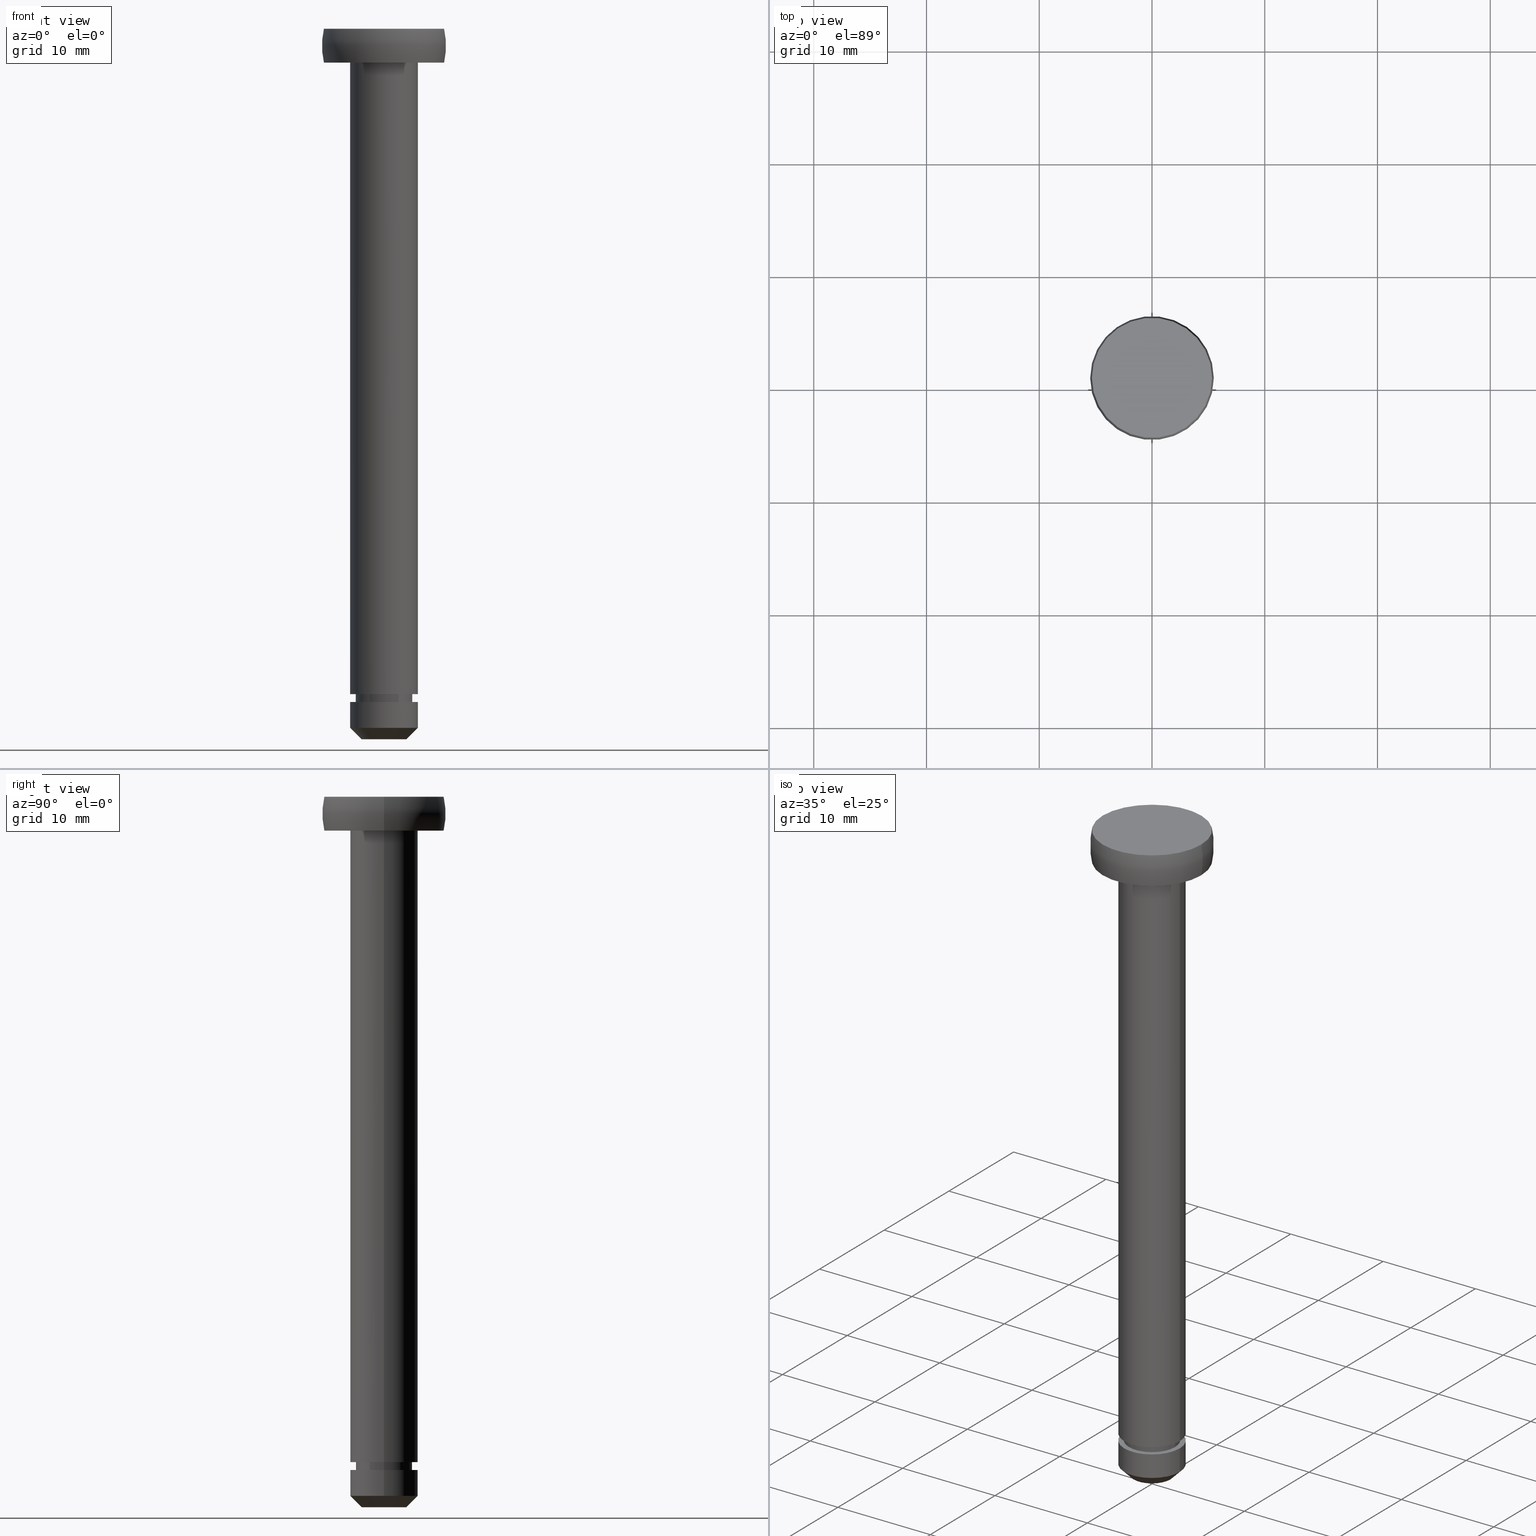
[diagram: canonical four-view strip — front | top / right | iso, engineering-drawing reading convention]
A machine part, canonical four-view strip (front | top / right | iso — engineering-drawing reading convention). The complete STEP part file that produces these views, byte-faithful:
ISO-10303-21;
HEADER;
FILE_DESCRIPTION (( 'STEP AP214' ),
    '1' );
FILE_NAME ('TH_121_6_60.STEP',
    '2016-08-24T01:35:07',
    ( '' ),
    ( '' ),
    'SwSTEP 2.0',
    'SolidWorks 2015',
    '' );
FILE_SCHEMA (( 'AUTOMOTIVE_DESIGN' ));
ENDSEC;

DATA;
#1 = APPLICATION_PROTOCOL_DEFINITION ( 'draft international standard', 'automotive_design', 1998, #329 ) ;
#2 = CARTESIAN_POINT ( 'NONE',  ( 1.142766791230102100, 0.0000000000000000000, 61.49999999097819600 ) ) ;
#3 = SHAPE_REPRESENTATION ( 'shaft', ( #101 ), #9 ) ;
#4 = PRODUCT_DEFINITION_SHAPE ( 'NONE', 'NONE',  #307 ) ;
#5 = EDGE_LOOP ( 'NONE', ( #110, #356, #138, #108 ) ) ;
#6 = VERTEX_POINT ( 'NONE', #304 ) ;
#7 = DIRECTION ( 'NONE',  ( -0.7071067811865862100, 8.659560562355407400E-017, 0.7071067811865087100 ) ) ;
#8 = FACE_OUTER_BOUND ( 'NONE', #444, .T. ) ;
#9 =( GEOMETRIC_REPRESENTATION_CONTEXT ( 3 ) GLOBAL_UNCERTAINTY_ASSIGNED_CONTEXT ( ( #298 ) ) GLOBAL_UNIT_ASSIGNED_CONTEXT ( ( #248, #393, #429 ) ) REPRESENTATION_CONTEXT ( 'NONE', 'WORKASPACE' ) );
#10 = ADVANCED_FACE ( 'NONE', ( #74 ), #19, .T. ) ;
#11 = PRODUCT_CONTEXT ( 'NONE', #45, 'mechanical' ) ;
#12 = VERTEX_POINT ( 'NONE', #446 ) ;
#13 = CARTESIAN_POINT ( 'NONE',  ( 5.328427118366801300, 6.525441214997862900E-016, 59.99999998195649900 ) ) ;
#14 = CIRCLE ( 'NONE', #423, 5.328427118366794200 ) ;
#15 =( NAMED_UNIT ( * ) SI_UNIT ( $, .STERADIAN. ) SOLID_ANGLE_UNIT ( ) );
#16 = VECTOR ( 'NONE', #7, 1000.000000000000100 ) ;
#17 = ORIENTED_EDGE ( 'NONE', *, *, #126, .T. ) ;
#18 = AXIS2_PLACEMENT_3D ( 'NONE', #187, #144, #368 ) ;
#19 = CYLINDRICAL_SURFACE ( 'NONE', #322, 2.500000000000000000 ) ;
#20 = DIRECTION ( 'NONE',  ( -1.000000000000000000, 0.0000000000000000000, 0.0000000000000000000 ) ) ;
#21 = AXIS2_PLACEMENT_3D ( 'NONE', #454, #199, #20 ) ;
#22 = CARTESIAN_POINT ( 'NONE',  ( 0.0000000000000000000, 0.0000000000000000000, 63.00000000000000000 ) ) ;
#23 = VECTOR ( 'NONE', #254, 1000.000000000000000 ) ;
#24 = DIRECTION ( 'NONE',  ( -1.000000000000000000, 0.0000000000000000000, -0.0000000000000000000 ) ) ;
#25 = VERTEX_POINT ( 'NONE', #152 ) ;
#26 = DIRECTION ( 'NONE',  ( 0.0000000000000000000, 0.0000000000000000000, -1.000000000000000000 ) ) ;
#27 = CIRCLE ( 'NONE', #136, 3.000000000000000000 ) ;
#28 = VERTEX_POINT ( 'NONE', #376 ) ;
#29 = FILL_AREA_STYLE ('',( #247 ) ) ;
#30 = FACE_OUTER_BOUND ( 'NONE', #333, .T. ) ;
#31 = SHAPE_REPRESENTATION ( 'TH_121_6_60', ( #230, #308 ), #327 ) ;
#32 = FACE_BOUND ( 'NONE', #188, .T. ) ;
#33 = SURFACE_SIDE_STYLE ('',( #60 ) ) ;
#34 = ORIENTED_EDGE ( 'NONE', *, *, #143, .F. ) ;
#35 = AXIS2_PLACEMENT_3D ( 'NONE', #169, #430, #213 ) ;
#36 = APPLICATION_PROTOCOL_DEFINITION ( 'draft international standard', 'automotive_design', 1998, #447 ) ;
#37 = PLANE ( 'NONE',  #86 ) ;
#38 = CYLINDRICAL_SURFACE ( 'NONE', #157, 3.000000000000000000 ) ;
#39 = EDGE_LOOP ( 'NONE', ( #414, #239, #123, #240 ) ) ;
#40 = CARTESIAN_POINT ( 'NONE',  ( -5.328427118366794200, 0.0000000000000000000, 63.00000000000000000 ) ) ;
#41 = CARTESIAN_POINT ( 'NONE',  ( 3.000000000000000000, 0.0000000000000000000, 3.299999981956490000 ) ) ;
#42 = CARTESIAN_POINT ( 'NONE',  ( 0.0000000000000000000, 0.0000000000000000000, 63.00000000000000000 ) ) ;
#43 = EDGE_LOOP ( 'NONE', ( #389, #349, #419, #382 ) ) ;
#44 = DIRECTION ( 'NONE',  ( 1.000000000000000000, 0.0000000000000000000, 0.0000000000000000000 ) ) ;
#45 = APPLICATION_CONTEXT ( 'automotive_design' ) ;
#46 = CARTESIAN_POINT ( 'NONE',  ( 0.0000000000000000000, 0.0000000000000000000, 63.00000000000000000 ) ) ;
#47 = APPLICATION_PROTOCOL_DEFINITION ( 'draft international standard', 'automotive_design', 1998, #82 ) ;
#48 = DIRECTION ( 'NONE',  ( 0.0000000000000000000, 0.0000000000000000000, -1.000000000000000000 ) ) ;
#49 = DIRECTION ( 'NONE',  ( -1.000000000000000000, 0.0000000000000000000, 0.0000000000000000000 ) ) ;
#50 = ORIENTED_EDGE ( 'NONE', *, *, #362, .T. ) ;
#51 = VERTEX_POINT ( 'NONE', #265 ) ;
#52 = DIRECTION ( 'NONE',  ( 0.0000000000000000000, 0.0000000000000000000, -1.000000000000000000 ) ) ;
#53 = CARTESIAN_POINT ( 'NONE',  ( -2.000000000000000000, 3.061616997868383100E-016, -1.804338622957146800E-008 ) ) ;
#54 = AXIS2_PLACEMENT_3D ( 'NONE', #391, #55, #353 ) ;
#55 = DIRECTION ( 'NONE',  ( 0.0000000000000000000, 0.0000000000000000000, -1.000000000000000000 ) ) ;
#56 = ADVANCED_FACE ( 'NONE', ( #30 ), #390, .T. ) ;
#57 = CARTESIAN_POINT ( 'NONE',  ( -2.500000000000000000, 0.0000000000000000000, 3.999999981956506200 ) ) ;
#58 = SURFACE_STYLE_USAGE ( .BOTH. , #284 ) ;
#59 = AXIS2_PLACEMENT_3D ( 'NONE', #107, #331, #70 ) ;
#60 = SURFACE_STYLE_FILL_AREA ( #219 ) ;
#61 = FACE_OUTER_BOUND ( 'NONE', #200, .T. ) ;
#62 = ITEM_DEFINED_TRANSFORMATION ( 'NONE', 'NONE', #308,  #101 ) ;
#63 = ORIENTED_EDGE ( 'NONE', *, *, #171, .T. ) ;
#64 = CARTESIAN_POINT ( 'NONE',  ( -1.142766791230102100, -1.399485693051835900E-016, 61.49999999097819600 ) ) ;
#65 = LINE ( 'NONE', #66, #375 ) ;
#66 = CARTESIAN_POINT ( 'NONE',  ( 3.000000000000000000, 3.673940397442059900E-016, 63.00000000000000000 ) ) ;
#67 =( NAMED_UNIT ( * ) PLANE_ANGLE_UNIT ( ) SI_UNIT ( $, .RADIAN. ) );
#68 = PRESENTATION_LAYER_ASSIGNMENT (  '', '', ( #215 ) ) ;
#69 = DIRECTION ( 'NONE',  ( 0.0000000000000000000, 0.0000000000000000000, -1.000000000000000000 ) ) ;
#70 = DIRECTION ( 'NONE',  ( -1.000000000000000000, 0.0000000000000000000, 0.0000000000000000000 ) ) ;
#71 = EDGE_CURVE ( 'NONE', #25, #75, #166, .T. ) ;
#72 = UNCERTAINTY_MEASURE_WITH_UNIT (LENGTH_MEASURE( 1.000000000000000100E-005 ), #149, 'distance_accuracy_value', 'NONE');
#73 = DIRECTION ( 'NONE',  ( 0.0000000000000000000, 0.0000000000000000000, -1.000000000000000000 ) ) ;
#74 = FACE_OUTER_BOUND ( 'NONE', #98, .T. ) ;
#75 = VERTEX_POINT ( 'NONE', #273 ) ;
#76 = ORIENTED_EDGE ( 'NONE', *, *, #134, .T. ) ;
#77 = DIRECTION ( 'NONE',  ( -0.0000000000000000000, -0.0000000000000000000, 1.000000000000000000 ) ) ;
#78 =( NAMED_UNIT ( * ) SI_UNIT ( $, .STERADIAN. ) SOLID_ANGLE_UNIT ( ) );
#79 = AXIS2_PLACEMENT_3D ( 'NONE', #135, #52, #464 ) ;
#80 = VECTOR ( 'NONE', #91, 1000.000000000000000 ) ;
#81 = CIRCLE ( 'NONE', #18, 3.000000000000000000 ) ;
#82 = APPLICATION_CONTEXT ( 'automotive_design' ) ;
#83 = PLANE ( 'NONE',  #340 ) ;
#84 = PRODUCT_DEFINITION_CONTEXT ( 'detailed design', #82, 'design' ) ;
#85 = PLANE ( 'NONE',  #463 ) ;
#86 = AXIS2_PLACEMENT_3D ( 'NONE', #41, #183, #259 ) ;
#87 = ORIENTED_EDGE ( 'NONE', *, *, #143, .T. ) ;
#88 = ORIENTED_EDGE ( 'NONE', *, *, #344, .F. ) ;
#89 = LINE ( 'NONE', #228, #208 ) ;
#90 = CIRCLE ( 'NONE', #341, 5.328427118366800400 ) ;
#91 = DIRECTION ( 'NONE',  ( 0.0000000000000000000, 0.0000000000000000000, -1.000000000000000000 ) ) ;
#92 = ADVANCED_FACE ( 'NONE', ( #363 ), #206, .T. ) ;
#93 = CARTESIAN_POINT ( 'NONE',  ( 0.0000000000000000000, 0.0000000000000000000, 59.99999998195649900 ) ) ;
#94 = MECHANICAL_DESIGN_GEOMETRIC_PRESENTATION_REPRESENTATION (  '', ( #215 ), #121 ) ;
#95 = DIRECTION ( 'NONE',  ( -1.000000000000000000, 0.0000000000000000000, 0.0000000000000000000 ) ) ;
#96 = EDGE_CURVE ( 'NONE', #358, #253, #289, .T. ) ;
#97 = VERTEX_POINT ( 'NONE', #193 ) ;
#98 = EDGE_LOOP ( 'NONE', ( #221, #466, #106, #102 ) ) ;
#99 = CIRCLE ( 'NONE', #246, 3.000000000000000000 ) ;
#100 = DIRECTION ( 'NONE',  ( -1.224646799147353200E-016, 1.000000000000000000, 0.0000000000000000000 ) ) ;
#101 = AXIS2_PLACEMENT_3D ( 'NONE', #167, #209, #462 ) ;
#102 = ORIENTED_EDGE ( 'NONE', *, *, #276, .F. ) ;
#103 = SURFACE_STYLE_USAGE ( .BOTH. , #33 ) ;
#104 = DIRECTION ( 'NONE',  ( 0.0000000000000000000, 0.0000000000000000000, -1.000000000000000000 ) ) ;
#105 = FACE_BOUND ( 'NONE', #203, .T. ) ;
#106 = ORIENTED_EDGE ( 'NONE', *, *, #96, .F. ) ;
#107 = CARTESIAN_POINT ( 'NONE',  ( 0.0000000000000000000, 0.0000000000000000000, -1.804338622957146800E-008 ) ) ;
#108 = ORIENTED_EDGE ( 'NONE', *, *, #197, .F. ) ;
#109 = AXIS2_PLACEMENT_3D ( 'NONE', #2, #182, #407 ) ;
#110 = ORIENTED_EDGE ( 'NONE', *, *, #154, .F. ) ;
#111 = CARTESIAN_POINT ( 'NONE',  ( 2.000000000000000000, 0.0000000000000000000, -1.804338622957146800E-008 ) ) ;
#112 = DIRECTION ( 'NONE',  ( -1.000000000000000000, 0.0000000000000000000, 0.0000000000000000000 ) ) ;
#113 = FACE_OUTER_BOUND ( 'NONE', #211, .T. ) ;
#114 = CARTESIAN_POINT ( 'NONE',  ( 0.0000000000000000000, 0.0000000000000000000, 0.0000000000000000000 ) ) ;
#115 = ORIENTED_EDGE ( 'NONE', *, *, #362, .F. ) ;
#116 = DIRECTION ( 'NONE',  ( 1.000000000000000000, 0.0000000000000000000, 0.0000000000000000000 ) ) ;
#117 = ADVANCED_FACE ( 'NONE', ( #270 ), #409, .T. ) ;
#118 = EDGE_CURVE ( 'NONE', #12, #185, #14, .T. ) ;
#119 = DIRECTION ( 'NONE',  ( -1.000000000000000000, 0.0000000000000000000, 0.0000000000000000000 ) ) ;
#120 =( NAMED_UNIT ( * ) PLANE_ANGLE_UNIT ( ) SI_UNIT ( $, .RADIAN. ) );
#121 =( GEOMETRIC_REPRESENTATION_CONTEXT ( 3 ) GLOBAL_UNCERTAINTY_ASSIGNED_CONTEXT ( ( #175 ) ) GLOBAL_UNIT_ASSIGNED_CONTEXT ( ( #328, #67, #290 ) ) REPRESENTATION_CONTEXT ( 'NONE', 'WORKASPACE' ) );
#122 = PRESENTATION_STYLE_ASSIGNMENT (( #58 ) ) ;
#123 = ORIENTED_EDGE ( 'NONE', *, *, #276, .T. ) ;
#124 = DIRECTION ( 'NONE',  ( 0.0000000000000000000, 0.0000000000000000000, -1.000000000000000000 ) ) ;
#125 = CIRCLE ( 'NONE', #109, 6.642766791230083200 ) ;
#126 = EDGE_CURVE ( 'NONE', #159, #408, #181, .T. ) ;
#127 = DIRECTION ( 'NONE',  ( 0.0000000000000000000, 0.0000000000000000000, -1.000000000000000000 ) ) ;
#128 = DIRECTION ( 'NONE',  ( -1.000000000000000000, 0.0000000000000000000, 0.0000000000000000000 ) ) ;
#129 = ORIENTED_EDGE ( 'NONE', *, *, #118, .T. ) ;
#130 = CARTESIAN_POINT ( 'NONE',  ( 3.000000000000000000, 3.673940397442059900E-016, 63.00000000000000000 ) ) ;
#131 = STYLED_ITEM ( 'NONE', ( #122 ), #316 ) ;
#132 = ADVANCED_FACE ( 'NONE', ( #380 ), #83, .T. ) ;
#133 = CARTESIAN_POINT ( 'NONE',  ( -5.328427118366800400, 0.0000000000000000000, 59.99999998195649900 ) ) ;
#134 = EDGE_CURVE ( 'NONE', #367, #160, #445, .T. ) ;
#135 = CARTESIAN_POINT ( 'NONE',  ( 0.0000000000000000000, 0.0000000000000000000, 61.49999999097819600 ) ) ;
#136 = AXIS2_PLACEMENT_3D ( 'NONE', #364, #104, #330 ) ;
#137 = ORIENTED_EDGE ( 'NONE', *, *, #338, .F. ) ;
#138 = ORIENTED_EDGE ( 'NONE', *, *, #226, .T. ) ;
#139 = PLANE ( 'NONE',  #222 ) ;
#140 = DIRECTION ( 'NONE',  ( 0.0000000000000000000, 0.0000000000000000000, -1.000000000000000000 ) ) ;
#141 = DIRECTION ( 'NONE',  ( -1.000000000000000000, 0.0000000000000000000, 0.0000000000000000000 ) ) ;
#142 = EDGE_CURVE ( 'NONE', #253, #358, #398, .T. ) ;
#143 = EDGE_CURVE ( 'NONE', #97, #28, #421, .T. ) ;
#144 = DIRECTION ( 'NONE',  ( 0.0000000000000000000, 0.0000000000000000000, -1.000000000000000000 ) ) ;
#145 = EDGE_LOOP ( 'NONE', ( #297, #465, #174, #88 ) ) ;
#146 = ORIENTED_EDGE ( 'NONE', *, *, #235, .T. ) ;
#147 = ORIENTED_EDGE ( 'NONE', *, *, #250, .T. ) ;
#148 = DIRECTION ( 'NONE',  ( 0.0000000000000000000, -0.0000000000000000000, 1.000000000000000000 ) ) ;
#149 =( LENGTH_UNIT ( ) NAMED_UNIT ( * ) SI_UNIT ( .MILLI., .METRE. ) );
#150 = ADVANCED_FACE ( 'NONE', ( #312 ), #85, .T. ) ;
#151 = PRESENTATION_LAYER_ASSIGNMENT (  '', '', ( #131 ) ) ;
#152 = CARTESIAN_POINT ( 'NONE',  ( -2.999999999999999600, 3.673940397442058900E-016, 0.9999999819565036400 ) ) ;
#153 = DIRECTION ( 'NONE',  ( -1.000000000000000000, 0.0000000000000000000, 0.0000000000000000000 ) ) ;
#154 = EDGE_CURVE ( 'NONE', #28, #172, #65, .T. ) ;
#155 = CARTESIAN_POINT ( 'NONE',  ( 0.0000000000000000000, 0.0000000000000000000, 3.299999981956493100 ) ) ;
#156 = CARTESIAN_POINT ( 'NONE',  ( 0.0000000000000000000, 0.0000000000000000000, -1.804338012334484900E-008 ) ) ;
#157 = AXIS2_PLACEMENT_3D ( 'NONE', #439, #225, #141 ) ;
#158 = SHAPE_DEFINITION_REPRESENTATION ( #212, #3 ) ;
#159 = VERTEX_POINT ( 'NONE', #13 ) ;
#160 = VERTEX_POINT ( 'NONE', #361 ) ;
#161 = ORIENTED_EDGE ( 'NONE', *, *, #301, .F. ) ;
#162 = DIRECTION ( 'NONE',  ( 0.0000000000000000000, 0.0000000000000000000, -1.000000000000000000 ) ) ;
#163 = CARTESIAN_POINT ( 'NONE',  ( 0.0000000000000000000, 0.0000000000000000000, 3.299999981956493100 ) ) ;
#164 = DIRECTION ( 'NONE',  ( 0.0000000000000000000, 0.0000000000000000000, -1.000000000000000000 ) ) ;
#165 = CONICAL_SURFACE ( 'NONE', #395, 2.000000000000000000, 0.7853981633975031200 ) ;
#166 = CIRCLE ( 'NONE', #275, 2.999999999999999600 ) ;
#167 = CARTESIAN_POINT ( 'NONE',  ( 0.0000000000000000000, 0.0000000000000000000, 0.0000000000000000000 ) ) ;
#168 = AXIS2_PLACEMENT_3D ( 'NONE', #436, #69, #179 ) ;
#169 = CARTESIAN_POINT ( 'NONE',  ( 0.0000000000000000000, 0.0000000000000000000, 63.00000000000000000 ) ) ;
#170 = EDGE_CURVE ( 'NONE', #369, #433, #224, .T. ) ;
#171 = EDGE_CURVE ( 'NONE', #160, #75, #450, .T. ) ;
#172 = VERTEX_POINT ( 'NONE', #332 ) ;
#173 = ORIENTED_EDGE ( 'NONE', *, *, #245, .F. ) ;
#174 = ORIENTED_EDGE ( 'NONE', *, *, #301, .T. ) ;
#175 = UNCERTAINTY_MEASURE_WITH_UNIT (LENGTH_MEASURE( 1.000000000000000100E-005 ), #328, 'distance_accuracy_value', 'NONE');
#176 = LINE ( 'NONE', #130, #80 ) ;
#177 = DIRECTION ( 'NONE',  ( 0.0000000000000000000, 0.0000000000000000000, -1.000000000000000000 ) ) ;
#178 = MECHANICAL_DESIGN_GEOMETRIC_PRESENTATION_REPRESENTATION (  '', ( #131 ), #205 ) ;
#179 = DIRECTION ( 'NONE',  ( -1.000000000000000000, 0.0000000000000000000, 0.0000000000000000000 ) ) ;
#180 = APPLICATION_PROTOCOL_DEFINITION ( 'draft international standard', 'automotive_design', 1998, #45 ) ;
#181 = CIRCLE ( 'NONE', #343, 5.328427118366800400 ) ;
#182 = DIRECTION ( 'NONE',  ( -0.0000000000000000000, -1.000000000000000000, -0.0000000000000000000 ) ) ;
#183 = DIRECTION ( 'NONE',  ( 0.0000000000000000000, -0.0000000000000000000, 1.000000000000000000 ) ) ;
#184 = EDGE_LOOP ( 'NONE', ( #87, #443, #137, #286 ) ) ;
#185 = VERTEX_POINT ( 'NONE', #40 ) ;
#186 = AXIS2_PLACEMENT_3D ( 'NONE', #64, #100, #325 ) ;
#187 = CARTESIAN_POINT ( 'NONE',  ( 0.0000000000000000000, 0.0000000000000000000, 3.999999981956506200 ) ) ;
#188 = EDGE_LOOP ( 'NONE', ( #34, #264 ) ) ;
#189 = CIRCLE ( 'NONE', #459, 3.000000000000000000 ) ;
#190 = DIRECTION ( 'NONE',  ( 0.0000000000000000000, 0.0000000000000000000, 1.000000000000000000 ) ) ;
#191 = DIRECTION ( 'NONE',  ( -1.000000000000000000, 0.0000000000000000000, 0.0000000000000000000 ) ) ;
#192 = DIRECTION ( 'NONE',  ( 0.0000000000000000000, 0.0000000000000000000, -1.000000000000000000 ) ) ;
#193 = CARTESIAN_POINT ( 'NONE',  ( -3.000000000000000000, 0.0000000000000000000, 59.99999998195649900 ) ) ;
#194 = AXIS2_PLACEMENT_3D ( 'NONE', #425, #457, #201 ) ;
#195 = ORIENTED_EDGE ( 'NONE', *, *, #197, .T. ) ;
#196 = ORIENTED_EDGE ( 'NONE', *, *, #118, .F. ) ;
#197 = EDGE_CURVE ( 'NONE', #172, #51, #81, .T. ) ;
#198 = EDGE_CURVE ( 'NONE', #367, #25, #210, .T. ) ;
#199 = DIRECTION ( 'NONE',  ( 0.0000000000000000000, 0.0000000000000000000, -1.000000000000000000 ) ) ;
#200 = EDGE_LOOP ( 'NONE', ( #214, #147, #115, #432 ) ) ;
#201 = DIRECTION ( 'NONE',  ( -1.000000000000000000, 0.0000000000000000000, 0.0000000000000000000 ) ) ;
#202 = CIRCLE ( 'NONE', #194, 3.000000000000000000 ) ;
#203 = EDGE_LOOP ( 'NONE', ( #320, #404 ) ) ;
#204 = DIRECTION ( 'NONE',  ( -0.0000000000000000000, -0.0000000000000000000, 1.000000000000000000 ) ) ;
#205 =( GEOMETRIC_REPRESENTATION_CONTEXT ( 3 ) GLOBAL_UNCERTAINTY_ASSIGNED_CONTEXT ( ( #345 ) ) GLOBAL_UNIT_ASSIGNED_CONTEXT ( ( #321, #374, #78 ) ) REPRESENTATION_CONTEXT ( 'NONE', 'WORKASPACE' ) );
#206 = CYLINDRICAL_SURFACE ( 'NONE', #400, 3.000000000000000000 ) ;
#207 = ADVANCED_FACE ( 'NONE', ( #105, #468 ), #37, .T. ) ;
#208 = VECTOR ( 'NONE', #73, 1000.000000000000000 ) ;
#209 = DIRECTION ( 'NONE',  ( 0.0000000000000000000, 0.0000000000000000000, 1.000000000000000000 ) ) ;
#210 = LINE ( 'NONE', #440, #16 ) ;
#211 = EDGE_LOOP ( 'NONE', ( #50, #17 ) ) ;
#212 = PRODUCT_DEFINITION_SHAPE ( 'NONE', 'NONE',  #255 ) ;
#213 = DIRECTION ( 'NONE',  ( -1.000000000000000000, 0.0000000000000000000, 0.0000000000000000000 ) ) ;
#214 = ORIENTED_EDGE ( 'NONE', *, *, #435, .T. ) ;
#215 = STYLED_ITEM ( 'NONE', ( #453 ), #262 ) ;
#216 = VECTOR ( 'NONE', #177, 1000.000000000000000 ) ;
#217 = ORIENTED_EDGE ( 'NONE', *, *, #170, .F. ) ;
#218 = CARTESIAN_POINT ( 'NONE',  ( 3.000000000000000000, 0.0000000000000000000, 59.99999998195649900 ) ) ;
#219 = FILL_AREA_STYLE ('',( #258 ) ) ;
#220 = SURFACE_STYLE_FILL_AREA ( #29 ) ;
#221 = ORIENTED_EDGE ( 'NONE', *, *, #170, .T. ) ;
#222 = AXIS2_PLACEMENT_3D ( 'NONE', #218, #140, #288 ) ;
#223 = COLOUR_RGB ( '',0.7921568627450980000, 0.8196078431372548800, 0.9333333333333333500 ) ;
#224 = CIRCLE ( 'NONE', #438, 2.500000000000000000 ) ;
#225 = DIRECTION ( 'NONE',  ( 0.0000000000000000000, 0.0000000000000000000, -1.000000000000000000 ) ) ;
#226 = EDGE_CURVE ( 'NONE', #97, #51, #89, .T. ) ;
#227 = EDGE_CURVE ( 'NONE', #433, #253, #293, .T. ) ;
#228 = CARTESIAN_POINT ( 'NONE',  ( -3.000000000000000000, 0.0000000000000000000, 63.00000000000000000 ) ) ;
#229 = ORIENTED_EDGE ( 'NONE', *, *, #435, .F. ) ;
#230 = AXIS2_PLACEMENT_3D ( 'NONE', #283, #415, #377 ) ;
#231 = DIRECTION ( 'NONE',  ( 0.0000000000000000000, 0.0000000000000000000, -1.000000000000000000 ) ) ;
#232 = DIRECTION ( 'NONE',  ( -1.000000000000000000, 0.0000000000000000000, 0.0000000000000000000 ) ) ;
#233 = CARTESIAN_POINT ( 'NONE',  ( 0.0000000000000000000, 0.0000000000000000000, 0.0000000000000000000 ) ) ;
#234 = DIRECTION ( 'NONE',  ( -1.000000000000000000, 0.0000000000000000000, 0.0000000000000000000 ) ) ;
#235 = EDGE_CURVE ( 'NONE', #160, #367, #313, .T. ) ;
#236 = DIRECTION ( 'NONE',  ( -1.000000000000000000, 0.0000000000000000000, 0.0000000000000000000 ) ) ;
#237 = DIRECTION ( 'NONE',  ( 0.0000000000000000000, 0.0000000000000000000, -1.000000000000000000 ) ) ;
#238 = CARTESIAN_POINT ( 'NONE',  ( 2.500000000000000000, 0.0000000000000000000, 3.999999981956505300 ) ) ;
#239 = ORIENTED_EDGE ( 'NONE', *, *, #401, .T. ) ;
#240 = ORIENTED_EDGE ( 'NONE', *, *, #142, .F. ) ;
#241 = DIRECTION ( 'NONE',  ( 0.0000000000000000000, 0.0000000000000000000, -1.000000000000000000 ) ) ;
#242 = CARTESIAN_POINT ( 'NONE',  ( 0.0000000000000000000, 0.0000000000000000000, -1.804338622957146800E-008 ) ) ;
#243 = ADVANCED_FACE ( 'NONE', ( #399 ), #38, .T. ) ;
#244 = DIRECTION ( 'NONE',  ( -1.000000000000000000, 0.0000000000000000000, 0.0000000000000000000 ) ) ;
#245 = EDGE_CURVE ( 'NONE', #6, #278, #27, .T. ) ;
#246 = AXIS2_PLACEMENT_3D ( 'NONE', #163, #386, #128 ) ;
#247 = FILL_AREA_STYLE_COLOUR ( '', #319 ) ;
#248 =( LENGTH_UNIT ( ) NAMED_UNIT ( * ) SI_UNIT ( .MILLI., .METRE. ) );
#249 = EDGE_CURVE ( 'NONE', #185, #408, #125, .T. ) ;
#250 = EDGE_CURVE ( 'NONE', #12, #159, #355, .T. ) ;
#251 = CONTEXT_DEPENDENT_SHAPE_REPRESENTATION ( #452, #294 ) ;
#252 = CLOSED_SHELL ( 'NONE', ( #92, #10, #428, #392, #268, #448, #132, #150, #56, #305, #207, #117, #352, #243, #282 ) ) ;
#253 = VERTEX_POINT ( 'NONE', #437 ) ;
#254 = DIRECTION ( 'NONE',  ( 0.0000000000000000000, 0.0000000000000000000, -1.000000000000000000 ) ) ;
#255 = PRODUCT_DEFINITION ( 'UNKNOWN', '', #378, #84 ) ;
#256 = SHAPE_REPRESENTATION_RELATIONSHIP ( 'NONE' , 'NONE' ,  #3, #316 ) ;
#257 = VECTOR ( 'NONE', #292, 1000.000000000000100 ) ;
#258 = FILL_AREA_STYLE_COLOUR ( '', #223 ) ;
#259 = DIRECTION ( 'NONE',  ( 1.000000000000000000, 0.0000000000000000000, 0.0000000000000000000 ) ) ;
#260 = DIRECTION ( 'NONE',  ( 0.0000000000000000000, 0.0000000000000000000, -1.000000000000000000 ) ) ;
#261 = SHAPE_DEFINITION_REPRESENTATION ( #4, #31 ) ;
#262 = MANIFOLD_SOLID_BREP ( '��]1', #252 ) ;
#263 = ORIENTED_EDGE ( 'NONE', *, *, #338, .T. ) ;
#264 = ORIENTED_EDGE ( 'NONE', *, *, #424, .F. ) ;
#265 = CARTESIAN_POINT ( 'NONE',  ( -3.000000000000000000, 0.0000000000000000000, 3.999999981956506200 ) ) ;
#266 = DIRECTION ( 'NONE',  ( 1.000000000000000000, 0.0000000000000000000, 0.0000000000000000000 ) ) ;
#267 = CIRCLE ( 'NONE', #422, 2.500000000000000000 ) ;
#268 = ADVANCED_FACE ( 'NONE', ( #61 ), #417, .T. ) ;
#269 = CARTESIAN_POINT ( 'NONE',  ( 5.328427118366794200, 0.0000000000000000000, 63.00000000000000000 ) ) ;
#270 = FACE_OUTER_BOUND ( 'NONE', #39, .T. ) ;
#271 = CARTESIAN_POINT ( 'NONE',  ( 0.0000000000000000000, 0.0000000000000000000, 63.00000000000000000 ) ) ;
#272 = AXIS2_PLACEMENT_3D ( 'NONE', #22, #317, #397 ) ;
#273 = CARTESIAN_POINT ( 'NONE',  ( 2.999999999999999600, 0.0000000000000000000, 0.9999999819565036400 ) ) ;
#274 = PRODUCT_DEFINITION_CONTEXT ( 'detailed design', #329, 'design' ) ;
#275 = AXIS2_PLACEMENT_3D ( 'NONE', #339, #124, #234 ) ;
#276 = EDGE_CURVE ( 'NONE', #369, #358, #315, .T. ) ;
#277 = ORIENTED_EDGE ( 'NONE', *, *, #71, .F. ) ;
#278 = VERTEX_POINT ( 'NONE', #403 ) ;
#279 = CIRCLE ( 'NONE', #35, 5.328427118366794200 ) ;
#280 = DIRECTION ( 'NONE',  ( 1.000000000000000000, 0.0000000000000000000, 0.0000000000000000000 ) ) ;
#281 = AXIS2_PLACEMENT_3D ( 'NONE', #114, #190, #309 ) ;
#282 = ADVANCED_FACE ( 'NONE', ( #113, #32 ), #139, .T. ) ;
#283 = CARTESIAN_POINT ( 'NONE',  ( 0.0000000000000000000, 0.0000000000000000000, 0.0000000000000000000 ) ) ;
#284 = SURFACE_SIDE_STYLE ('',( #220 ) ) ;
#285 = ORIENTED_EDGE ( 'NONE', *, *, #250, .F. ) ;
#286 = ORIENTED_EDGE ( 'NONE', *, *, #226, .F. ) ;
#287 = FACE_BOUND ( 'NONE', #296, .T. ) ;
#288 = DIRECTION ( 'NONE',  ( -1.000000000000000000, 0.0000000000000000000, -0.0000000000000000000 ) ) ;
#289 = CIRCLE ( 'NONE', #370, 2.500000000000000000 ) ;
#290 =( NAMED_UNIT ( * ) SI_UNIT ( $, .STERADIAN. ) SOLID_ANGLE_UNIT ( ) );
#291 = PRODUCT_CONTEXT ( 'NONE', #447, 'mechanical' ) ;
#292 = DIRECTION ( 'NONE',  ( 0.7071067811865862100, 0.0000000000000000000, 0.7071067811865087100 ) ) ;
#293 = LINE ( 'NONE', #299, #410 ) ;
#294 = PRODUCT_DEFINITION_SHAPE ( 'NONE', 'NONE',  #469 ) ;
#295 = AXIS2_PLACEMENT_3D ( 'NONE', #431, #26, #458 ) ;
#296 = EDGE_LOOP ( 'NONE', ( #217, #426 ) ) ;
#297 = ORIENTED_EDGE ( 'NONE', *, *, #371, .F. ) ;
#298 = UNCERTAINTY_MEASURE_WITH_UNIT (LENGTH_MEASURE( 1.000000000000000100E-005 ), #248, 'distance_accuracy_value', 'NONE');
#299 = CARTESIAN_POINT ( 'NONE',  ( 2.500000000000000000, 3.061616997868383100E-016, 63.00000000000000000 ) ) ;
#300 = AXIS2_PLACEMENT_3D ( 'NONE', #416, #77, #266 ) ;
#301 = EDGE_CURVE ( 'NONE', #6, #25, #412, .T. ) ;
#302 = DIRECTION ( 'NONE',  ( 0.0000000000000000000, 0.0000000000000000000, -1.000000000000000000 ) ) ;
#303 = FACE_OUTER_BOUND ( 'NONE', #145, .T. ) ;
#304 = CARTESIAN_POINT ( 'NONE',  ( -3.000000000000000000, 0.0000000000000000000, 3.299999981956493100 ) ) ;
#305 = ADVANCED_FACE ( 'NONE', ( #303 ), #387, .T. ) ;
#306 = EDGE_LOOP ( 'NONE', ( #229, #196 ) ) ;
#307 = PRODUCT_DEFINITION ( 'UNKNOWN', '', #326, #274 ) ;
#308 = AXIS2_PLACEMENT_3D ( 'NONE', #233, #337, #44 ) ;
#309 = DIRECTION ( 'NONE',  ( 1.000000000000000000, 0.0000000000000000000, 0.0000000000000000000 ) ) ;
#310 = DIRECTION ( 'NONE',  ( 0.0000000000000000000, 0.0000000000000000000, -1.000000000000000000 ) ) ;
#311 = ORIENTED_EDGE ( 'NONE', *, *, #323, .F. ) ;
#312 = FACE_OUTER_BOUND ( 'NONE', #396, .T. ) ;
#313 = CIRCLE ( 'NONE', #59, 2.000000000000000000 ) ;
#314 = PRODUCT ( 'shaft', 'shaft', '', ( #11 ) ) ;
#315 = LINE ( 'NONE', #434, #216 ) ;
#316 = ADVANCED_BREP_SHAPE_REPRESENTATION ( '', ( #262, #101 ), #9 ) ;
#317 = DIRECTION ( 'NONE',  ( 0.0000000000000000000, 0.0000000000000000000, -1.000000000000000000 ) ) ;
#318 = CARTESIAN_POINT ( 'NONE',  ( -2.500000000000000000, 0.0000000000000000000, 3.299999981956493100 ) ) ;
#319 = COLOUR_RGB ( '',0.7921568627450980000, 0.8196078431372548800, 0.9333333333333333500 ) ;
#320 = ORIENTED_EDGE ( 'NONE', *, *, #96, .T. ) ;
#321 =( LENGTH_UNIT ( ) NAMED_UNIT ( * ) SI_UNIT ( .MILLI., .METRE. ) );
#322 = AXIS2_PLACEMENT_3D ( 'NONE', #42, #231, #191 ) ;
#323 = EDGE_CURVE ( 'NONE', #278, #6, #99, .T. ) ;
#324 = EDGE_LOOP ( 'NONE', ( #384, #334, #277, #161 ) ) ;
#325 = DIRECTION ( 'NONE',  ( -1.000000000000000000, -1.224646799147353200E-016, 0.0000000000000000000 ) ) ;
#326 = PRODUCT_DEFINITION_FORMATION_WITH_SPECIFIED_SOURCE ( 'ANY', '', #347, .NOT_KNOWN. ) ;
#327 =( GEOMETRIC_REPRESENTATION_CONTEXT ( 3 ) GLOBAL_UNCERTAINTY_ASSIGNED_CONTEXT ( ( #72 ) ) GLOBAL_UNIT_ASSIGNED_CONTEXT ( ( #149, #120, #15 ) ) REPRESENTATION_CONTEXT ( 'NONE', 'WORKASPACE' ) );
#328 =( LENGTH_UNIT ( ) NAMED_UNIT ( * ) SI_UNIT ( .MILLI., .METRE. ) );
#329 = APPLICATION_CONTEXT ( 'automotive_design' ) ;
#330 = DIRECTION ( 'NONE',  ( -1.000000000000000000, 0.0000000000000000000, 0.0000000000000000000 ) ) ;
#331 = DIRECTION ( 'NONE',  ( 0.0000000000000000000, 0.0000000000000000000, -1.000000000000000000 ) ) ;
#332 = CARTESIAN_POINT ( 'NONE',  ( 3.000000000000000000, 3.673940397442059900E-016, 3.999999981956506200 ) ) ;
#333 = EDGE_LOOP ( 'NONE', ( #455, #442, #63, #372 ) ) ;
#334 = ORIENTED_EDGE ( 'NONE', *, *, #371, .T. ) ;
#335 = DIRECTION ( 'NONE',  ( -1.000000000000000000, 0.0000000000000000000, -0.0000000000000000000 ) ) ;
#336 = CARTESIAN_POINT ( 'NONE',  ( 0.0000000000000000000, 0.0000000000000000000, 3.299999981956493100 ) ) ;
#337 = DIRECTION ( 'NONE',  ( 0.0000000000000000000, 0.0000000000000000000, 1.000000000000000000 ) ) ;
#338 = EDGE_CURVE ( 'NONE', #51, #172, #202, .T. ) ;
#339 = CARTESIAN_POINT ( 'NONE',  ( 0.0000000000000000000, 0.0000000000000000000, 0.9999999819565036400 ) ) ;
#340 = AXIS2_PLACEMENT_3D ( 'NONE', #269, #148, #116 ) ;
#341 = AXIS2_PLACEMENT_3D ( 'NONE', #388, #164, #427 ) ;
#342 = CARTESIAN_POINT ( 'NONE',  ( 0.0000000000000000000, 0.0000000000000000000, 59.99999998195649900 ) ) ;
#343 = AXIS2_PLACEMENT_3D ( 'NONE', #413, #379, #153 ) ;
#344 = EDGE_CURVE ( 'NONE', #75, #25, #402, .T. ) ;
#345 = UNCERTAINTY_MEASURE_WITH_UNIT (LENGTH_MEASURE( 1.000000000000000100E-005 ), #321, 'distance_accuracy_value', 'NONE');
#346 = TOROIDAL_SURFACE ( 'NONE', #79, -1.142766791230102100, 6.642766791230085000 ) ;
#347 = PRODUCT ( 'TH_121_6_60', 'TH_121_6_60', '', ( #291 ) ) ;
#348 = EDGE_LOOP ( 'NONE', ( #173, #311 ) ) ;
#349 = ORIENTED_EDGE ( 'NONE', *, *, #198, .T. ) ;
#350 = PLANE ( 'NONE',  #366 ) ;
#351 = PRODUCT_RELATED_PRODUCT_CATEGORY ( 'part', '', ( #347 ) ) ;
#352 = ADVANCED_FACE ( 'NONE', ( #8, #287 ), #350, .T. ) ;
#353 = DIRECTION ( 'NONE',  ( -1.000000000000000000, 0.0000000000000000000, 0.0000000000000000000 ) ) ;
#354 = DIRECTION ( 'NONE',  ( 0.0000000000000000000, 0.0000000000000000000, -1.000000000000000000 ) ) ;
#355 = CIRCLE ( 'NONE', #186, 6.642766791230085000 ) ;
#356 = ORIENTED_EDGE ( 'NONE', *, *, #424, .T. ) ;
#357 = ORIENTED_EDGE ( 'NONE', *, *, #249, .T. ) ;
#358 = VERTEX_POINT ( 'NONE', #318 ) ;
#359 = CARTESIAN_POINT ( 'NONE',  ( -3.000000000000000000, 0.0000000000000000000, 63.00000000000000000 ) ) ;
#360 = FACE_OUTER_BOUND ( 'NONE', #324, .T. ) ;
#361 = CARTESIAN_POINT ( 'NONE',  ( 2.000000000000000000, 0.0000000000000000000, -1.804338622957146800E-008 ) ) ;
#362 = EDGE_CURVE ( 'NONE', #408, #159, #90, .T. ) ;
#363 = FACE_OUTER_BOUND ( 'NONE', #184, .T. ) ;
#364 = CARTESIAN_POINT ( 'NONE',  ( 0.0000000000000000000, 0.0000000000000000000, 3.299999981956493100 ) ) ;
#365 = AXIS2_PLACEMENT_3D ( 'NONE', #336, #310, #49 ) ;
#366 = AXIS2_PLACEMENT_3D ( 'NONE', #238, #241, #24 ) ;
#367 = VERTEX_POINT ( 'NONE', #53 ) ;
#368 = DIRECTION ( 'NONE',  ( -1.000000000000000000, 0.0000000000000000000, 0.0000000000000000000 ) ) ;
#369 = VERTEX_POINT ( 'NONE', #57 ) ;
#370 = AXIS2_PLACEMENT_3D ( 'NONE', #155, #418, #119 ) ;
#371 = EDGE_CURVE ( 'NONE', #278, #75, #176, .T. ) ;
#372 = ORIENTED_EDGE ( 'NONE', *, *, #344, .T. ) ;
#373 = FACE_OUTER_BOUND ( 'NONE', #467, .T. ) ;
#374 =( NAMED_UNIT ( * ) PLANE_ANGLE_UNIT ( ) SI_UNIT ( $, .RADIAN. ) );
#375 = VECTOR ( 'NONE', #405, 1000.000000000000000 ) ;
#376 = CARTESIAN_POINT ( 'NONE',  ( 3.000000000000000000, 3.673940397442059900E-016, 59.99999998195649900 ) ) ;
#377 = DIRECTION ( 'NONE',  ( 1.000000000000000000, 0.0000000000000000000, 0.0000000000000000000 ) ) ;
#378 = PRODUCT_DEFINITION_FORMATION_WITH_SPECIFIED_SOURCE ( 'ANY', '', #314, .NOT_KNOWN. ) ;
#379 = DIRECTION ( 'NONE',  ( 0.0000000000000000000, 0.0000000000000000000, -1.000000000000000000 ) ) ;
#380 = FACE_OUTER_BOUND ( 'NONE', #306, .T. ) ;
#381 = DIRECTION ( 'NONE',  ( 0.0000000000000000000, 0.0000000000000000000, -1.000000000000000000 ) ) ;
#382 = ORIENTED_EDGE ( 'NONE', *, *, #171, .F. ) ;
#383 = DIRECTION ( 'NONE',  ( -1.000000000000000000, 0.0000000000000000000, 0.0000000000000000000 ) ) ;
#384 = ORIENTED_EDGE ( 'NONE', *, *, #245, .T. ) ;
#385 = CARTESIAN_POINT ( 'NONE',  ( 0.0000000000000000000, 0.0000000000000000000, 3.999999981956506200 ) ) ;
#386 = DIRECTION ( 'NONE',  ( 0.0000000000000000000, 0.0000000000000000000, -1.000000000000000000 ) ) ;
#387 = CYLINDRICAL_SURFACE ( 'NONE', #272, 3.000000000000000000 ) ;
#388 = CARTESIAN_POINT ( 'NONE',  ( 0.0000000000000000000, 0.0000000000000000000, 59.99999998195649900 ) ) ;
#389 = ORIENTED_EDGE ( 'NONE', *, *, #134, .F. ) ;
#390 = CONICAL_SURFACE ( 'NONE', #300, 2.000000000000000000, 0.7853981633975031200 ) ;
#391 = CARTESIAN_POINT ( 'NONE',  ( 0.0000000000000000000, 0.0000000000000000000, 63.00000000000000000 ) ) ;
#392 = ADVANCED_FACE ( 'NONE', ( #460 ), #165, .T. ) ;
#393 =( NAMED_UNIT ( * ) PLANE_ANGLE_UNIT ( ) SI_UNIT ( $, .RADIAN. ) );
#394 = AXIS2_PLACEMENT_3D ( 'NONE', #342, #127, #383 ) ;
#395 = AXIS2_PLACEMENT_3D ( 'NONE', #242, #204, #280 ) ;
#396 = EDGE_LOOP ( 'NONE', ( #146, #76 ) ) ;
#397 = DIRECTION ( 'NONE',  ( -1.000000000000000000, 0.0000000000000000000, 0.0000000000000000000 ) ) ;
#398 = CIRCLE ( 'NONE', #365, 2.500000000000000000 ) ;
#399 = FACE_OUTER_BOUND ( 'NONE', #5, .T. ) ;
#400 = AXIS2_PLACEMENT_3D ( 'NONE', #420, #381, #236 ) ;
#401 = EDGE_CURVE ( 'NONE', #433, #369, #267, .T. ) ;
#402 = CIRCLE ( 'NONE', #295, 2.999999999999999600 ) ;
#403 = CARTESIAN_POINT ( 'NONE',  ( 3.000000000000000000, 3.673940397442059900E-016, 3.299999981956493100 ) ) ;
#404 = ORIENTED_EDGE ( 'NONE', *, *, #142, .T. ) ;
#405 = DIRECTION ( 'NONE',  ( 0.0000000000000000000, 0.0000000000000000000, -1.000000000000000000 ) ) ;
#406 = PRODUCT_RELATED_PRODUCT_CATEGORY ( 'part', '', ( #314 ) ) ;
#407 = DIRECTION ( 'NONE',  ( 0.0000000000000000000, 0.0000000000000000000, -1.000000000000000000 ) ) ;
#408 = VERTEX_POINT ( 'NONE', #133 ) ;
#409 = CYLINDRICAL_SURFACE ( 'NONE', #441, 2.500000000000000000 ) ;
#410 = VECTOR ( 'NONE', #260, 1000.000000000000000 ) ;
#411 = CARTESIAN_POINT ( 'NONE',  ( 0.0000000000000000000, 0.0000000000000000000, 3.999999981956506200 ) ) ;
#412 = LINE ( 'NONE', #359, #23 ) ;
#413 = CARTESIAN_POINT ( 'NONE',  ( 0.0000000000000000000, 0.0000000000000000000, 59.99999998195649900 ) ) ;
#414 = ORIENTED_EDGE ( 'NONE', *, *, #227, .F. ) ;
#415 = DIRECTION ( 'NONE',  ( 0.0000000000000000000, 0.0000000000000000000, 1.000000000000000000 ) ) ;
#416 = CARTESIAN_POINT ( 'NONE',  ( 0.0000000000000000000, 0.0000000000000000000, -1.804338622957146800E-008 ) ) ;
#417 = TOROIDAL_SURFACE ( 'NONE', #168, -1.142766791230102100, 6.642766791230085000 ) ;
#418 = DIRECTION ( 'NONE',  ( 0.0000000000000000000, 0.0000000000000000000, -1.000000000000000000 ) ) ;
#419 = ORIENTED_EDGE ( 'NONE', *, *, #71, .T. ) ;
#420 = CARTESIAN_POINT ( 'NONE',  ( 0.0000000000000000000, 0.0000000000000000000, 63.00000000000000000 ) ) ;
#421 = CIRCLE ( 'NONE', #394, 3.000000000000000000 ) ;
#422 = AXIS2_PLACEMENT_3D ( 'NONE', #385, #162, #244 ) ;
#423 = AXIS2_PLACEMENT_3D ( 'NONE', #46, #192, #232 ) ;
#424 = EDGE_CURVE ( 'NONE', #28, #97, #189, .T. ) ;
#425 = CARTESIAN_POINT ( 'NONE',  ( 0.0000000000000000000, 0.0000000000000000000, 3.999999981956506200 ) ) ;
#426 = ORIENTED_EDGE ( 'NONE', *, *, #401, .F. ) ;
#427 = DIRECTION ( 'NONE',  ( -1.000000000000000000, 0.0000000000000000000, 0.0000000000000000000 ) ) ;
#428 = ADVANCED_FACE ( 'NONE', ( #360 ), #449, .T. ) ;
#429 =( NAMED_UNIT ( * ) SI_UNIT ( $, .STERADIAN. ) SOLID_ANGLE_UNIT ( ) );
#430 = DIRECTION ( 'NONE',  ( 0.0000000000000000000, 0.0000000000000000000, -1.000000000000000000 ) ) ;
#431 = CARTESIAN_POINT ( 'NONE',  ( 0.0000000000000000000, 0.0000000000000000000, 0.9999999819565036400 ) ) ;
#432 = ORIENTED_EDGE ( 'NONE', *, *, #249, .F. ) ;
#433 = VERTEX_POINT ( 'NONE', #461 ) ;
#434 = CARTESIAN_POINT ( 'NONE',  ( -2.500000000000000000, 0.0000000000000000000, 63.00000000000000000 ) ) ;
#435 = EDGE_CURVE ( 'NONE', #185, #12, #279, .T. ) ;
#436 = CARTESIAN_POINT ( 'NONE',  ( 0.0000000000000000000, 0.0000000000000000000, 61.49999999097819600 ) ) ;
#437 = CARTESIAN_POINT ( 'NONE',  ( 2.500000000000000000, 3.061616997868383100E-016, 3.299999981956493100 ) ) ;
#438 = AXIS2_PLACEMENT_3D ( 'NONE', #411, #302, #112 ) ;
#439 = CARTESIAN_POINT ( 'NONE',  ( 0.0000000000000000000, 0.0000000000000000000, 63.00000000000000000 ) ) ;
#440 = CARTESIAN_POINT ( 'NONE',  ( -2.000000000000000000, 2.449293598294706400E-016, -1.804338622957146800E-008 ) ) ;
#441 = AXIS2_PLACEMENT_3D ( 'NONE', #271, #48, #451 ) ;
#442 = ORIENTED_EDGE ( 'NONE', *, *, #235, .F. ) ;
#443 = ORIENTED_EDGE ( 'NONE', *, *, #154, .T. ) ;
#444 = EDGE_LOOP ( 'NONE', ( #263, #195 ) ) ;
#445 = CIRCLE ( 'NONE', #21, 2.000000000000000000 ) ;
#446 = CARTESIAN_POINT ( 'NONE',  ( 5.328427118366793300, 6.525441214997859000E-016, 63.00000000000000000 ) ) ;
#447 = APPLICATION_CONTEXT ( 'automotive_design' ) ;
#448 = ADVANCED_FACE ( 'NONE', ( #373 ), #346, .T. ) ;
#449 = CYLINDRICAL_SURFACE ( 'NONE', #54, 3.000000000000000000 ) ;
#450 = LINE ( 'NONE', #111, #257 ) ;
#451 = DIRECTION ( 'NONE',  ( -1.000000000000000000, 0.0000000000000000000, 0.0000000000000000000 ) ) ;
#452 =( REPRESENTATION_RELATIONSHIP ('NONE','NONE', #31, #3 ) REPRESENTATION_RELATIONSHIP_WITH_TRANSFORMATION ( #62 )SHAPE_REPRESENTATION_RELATIONSHIP( ) );
#453 = PRESENTATION_STYLE_ASSIGNMENT (( #103 ) ) ;
#454 = CARTESIAN_POINT ( 'NONE',  ( 0.0000000000000000000, 0.0000000000000000000, -1.804338622957146800E-008 ) ) ;
#455 = ORIENTED_EDGE ( 'NONE', *, *, #198, .F. ) ;
#456 = ORIENTED_EDGE ( 'NONE', *, *, #126, .F. ) ;
#457 = DIRECTION ( 'NONE',  ( 0.0000000000000000000, 0.0000000000000000000, -1.000000000000000000 ) ) ;
#458 = DIRECTION ( 'NONE',  ( -1.000000000000000000, 0.0000000000000000000, 0.0000000000000000000 ) ) ;
#459 = AXIS2_PLACEMENT_3D ( 'NONE', #93, #354, #95 ) ;
#460 = FACE_OUTER_BOUND ( 'NONE', #43, .T. ) ;
#461 = CARTESIAN_POINT ( 'NONE',  ( 2.500000000000000000, 3.061616997868383100E-016, 3.999999981956506200 ) ) ;
#462 = DIRECTION ( 'NONE',  ( 1.000000000000000000, 0.0000000000000000000, 0.0000000000000000000 ) ) ;
#463 = AXIS2_PLACEMENT_3D ( 'NONE', #156, #237, #335 ) ;
#464 = DIRECTION ( 'NONE',  ( -1.000000000000000000, 0.0000000000000000000, 0.0000000000000000000 ) ) ;
#465 = ORIENTED_EDGE ( 'NONE', *, *, #323, .T. ) ;
#466 = ORIENTED_EDGE ( 'NONE', *, *, #227, .T. ) ;
#467 = EDGE_LOOP ( 'NONE', ( #285, #129, #357, #456 ) ) ;
#468 = FACE_OUTER_BOUND ( 'NONE', #348, .T. ) ;
#469 = NEXT_ASSEMBLY_USAGE_OCCURRENCE ( 'NAUO1', ' ', ' ', #307, #255, $ ) ;
ENDSEC;
END-ISO-10303-21;
